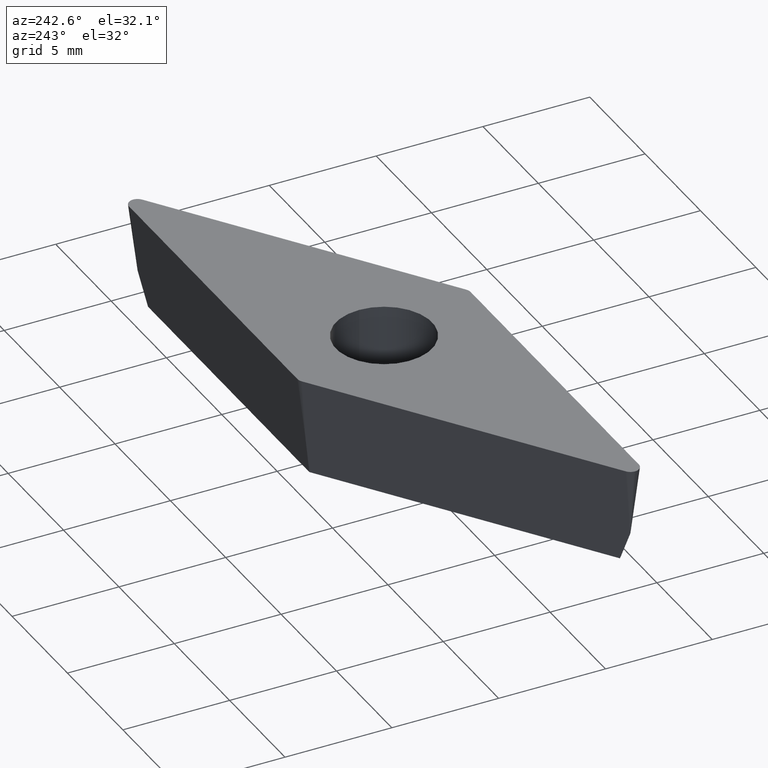
[diagram: clean part render]
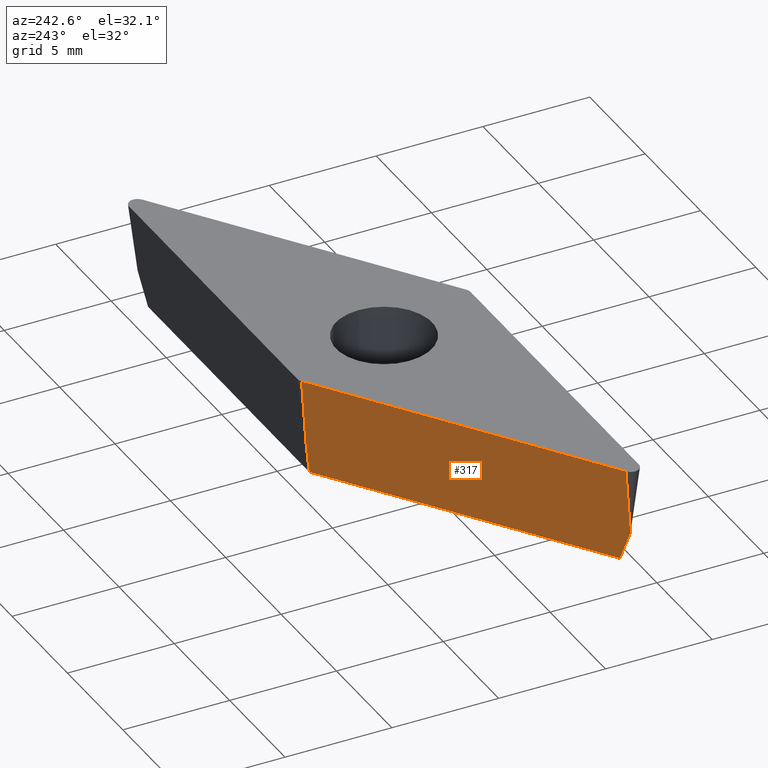
[diagram: same view with one face highlighted and labeled with its STEP entity id]
A machine part, auxiliary view. The second image highlights one B-rep face of the part: STEP entity #317.
In plain terms, the highlighted face is a freeform B-spline surface patch.
Its self-contained STEP definition (entity closure, byte-faithful):
#8 = CARTESIAN_POINT ( 'NONE',  ( -1.604921541024973500, 4.690160817715596200, 0.0000000000000000000 ) ) ;
#35 = CARTESIAN_POINT ( 'NONE',  ( -14.06551289985006100, -4.034839182284403400, 0.0000000000000000000 ) ) ;
#41 = EDGE_CURVE ( 'NONE', #280, #268, #226, .T. ) ;
#46 = EDGE_LOOP ( 'NONE', ( #370, #372, #373, #381, #391, #396 ) ) ;
#58 = VERTEX_POINT ( 'NONE', #394 ) ;
#64 = CARTESIAN_POINT ( 'NONE',  ( -1.317332682910531600, 4.178045490102173100, -4.760000000000000700 ) ) ;
#66 = EDGE_CURVE ( 'NONE', #280, #141, #337, .T. ) ;
#114 = CARTESIAN_POINT ( 'NONE',  ( -1.356104871959882500, 4.301015163367398300, -3.758492380793154300 ) ) ;
#117 = DIRECTION ( 'NONE',  ( -0.06990138369076598400, 0.09982952178648429900, 0.9925461516413219800 ) ) ;
#138 = CARTESIAN_POINT ( 'NONE',  ( -5.356176791971639000, 1.207318956491275200, -5.711999999999998900 ) ) ;
#141 = VERTEX_POINT ( 'NONE', #159 ) ;
#143 = CARTESIAN_POINT ( 'NONE',  ( -13.25106736044506700, -4.178045490102174000, -4.760000000000000700 ) ) ;
#148 = VECTOR ( 'NONE', #117, 1000.000000000000000 ) ;
#149 = CARTESIAN_POINT ( 'NONE',  ( -5.758451993967421200, 1.781827484383353500, 0.0000000000000000000 ) ) ;
#157 = CARTESIAN_POINT ( 'NONE',  ( -15.10472024625494200, -4.762500000000002000, 0.0000000000000000000 ) ) ;
#159 = CARTESIAN_POINT ( 'NONE',  ( -1.375490966484563800, 4.362500000000008700, -3.257738571189731800 ) ) ;
#171 = LINE ( 'NONE', #345, #148 ) ;
#178 = CARTESIAN_POINT ( 'NONE',  ( -13.25106736044506700, -4.178045490102174000, -4.760000000000000700 ) ) ;
#187 = B_SPLINE_SURFACE_WITH_KNOTS ( 'NONE', 1, 3, ( 
 ( #8, #149, #351, #290 ),
 ( #292, #138, #204, #205 ) ),
 .UNSPECIFIED., .F., .F., .F.,
 ( 2, 2 ),
 ( 4, 4 ),
 ( 0.0000000000000000000, 1.000000000000000000 ),
 ( -0.01648021121273949100, -0.001268637920945297400 ),
 .UNSPECIFIED. ) ;
#197 = EDGE_CURVE ( 'NONE', #349, #141, #217, .T. ) ;
#199 = FACE_OUTER_BOUND ( 'NONE', #46, .T. ) ;
#203 = VECTOR ( 'NONE', #207, 1000.000000000000100 ) ;
#204 = CARTESIAN_POINT ( 'NONE',  ( -9.509707244912023700, -1.701014376843929600, -5.711999999999998900 ) ) ;
#205 = CARTESIAN_POINT ( 'NONE',  ( -13.66323769785427300, -4.609347710176476400, -5.711999999999998900 ) ) ;
#207 = DIRECTION ( 'NONE',  ( -0.8191520442889946900, -0.5735764363510417200, -0.0000000000000000000 ) ) ;
#217 = LINE ( 'NONE', #286, #223 ) ;
#222 = CARTESIAN_POINT ( 'NONE',  ( -1.317332682910531600, 4.178045490102173100, -4.760000000000000700 ) ) ;
#223 = VECTOR ( 'NONE', #448, 1000.000000000000000 ) ;
#225 = CARTESIAN_POINT ( 'NONE',  ( -5.295244242089439400, 1.392681830035107600, -4.759999999999998900 ) ) ;
#226 = B_SPLINE_CURVE_WITH_KNOTS ( 'NONE', 3,
 ( #355, #225, #243, #288 ),
 .UNSPECIFIED., .F., .F.,
 ( 4, 4 ),
 ( 1.226634733346699300E-018, 0.01456840004335557700 ),
 .UNSPECIFIED. ) ;
#243 = CARTESIAN_POINT ( 'NONE',  ( -9.273155801266469200, -1.392681830034654200, -4.759999999999998900 ) ) ;
#258 = CARTESIAN_POINT ( 'NONE',  ( -1.604921541024973500, 4.690160817715596200, 0.0000000000000000000 ) ) ;
#268 = VERTEX_POINT ( 'NONE', #143 ) ;
#275 = LINE ( 'NONE', #157, #203 ) ;
#280 = VERTEX_POINT ( 'NONE', #222 ) ;
#286 = CARTESIAN_POINT ( 'NONE',  ( -1.604921541024973500, 4.690160817715596200, 0.0000000000000000000 ) ) ;
#288 = CARTESIAN_POINT ( 'NONE',  ( -13.25106736044506700, -4.178045490102174000, -4.760000000000000700 ) ) ;
#290 = CARTESIAN_POINT ( 'NONE',  ( -14.06551289985006100, -4.034839182284403400, 0.0000000000000000000 ) ) ;
#292 = CARTESIAN_POINT ( 'NONE',  ( -1.202646339029185100, 4.115652289823523300, -5.711999999999998900 ) ) ;
#296 = EDGE_CURVE ( 'NONE', #349, #417, #275, .T. ) ;
#297 = CARTESIAN_POINT ( 'NONE',  ( -1.375490966484563800, 4.362500000000008700, -3.257738571189731800 ) ) ;
#305 = B_SPLINE_CURVE_WITH_KNOTS ( 'NONE', 3,
 ( #178, #460, #455, #447 ),
 .UNSPECIFIED., .F., .F.,
 ( 4, 4 ),
 ( 0.0000000000000000000, 0.001622669213311180100 ),
 .UNSPECIFIED. ) ;
#317 = ADVANCED_FACE ( 'NONE', ( #199 ), #187, .T. ) ;
#318 = CARTESIAN_POINT ( 'NONE',  ( -1.336718777435206700, 4.239530326734785200, -4.259246190396577700 ) ) ;
#337 = B_SPLINE_CURVE_WITH_KNOTS ( 'NONE', 3,
 ( #64, #318, #114, #297 ),
 .UNSPECIFIED., .F., .F.,
 ( 4, 4 ),
 ( 0.0000000000000000000, 0.001514660111266220100 ),
 .UNSPECIFIED. ) ;
#345 = CARTESIAN_POINT ( 'NONE',  ( -14.06551289985006100, -4.034839182284403400, 0.0000000000000000000 ) ) ;
#349 = VERTEX_POINT ( 'NONE', #258 ) ;
#351 = CARTESIAN_POINT ( 'NONE',  ( -9.911982446907822800, -1.126505848951864900, 0.0000000000000000000 ) ) ;
#355 = CARTESIAN_POINT ( 'NONE',  ( -1.317332682910531600, 4.178045490102173100, -4.760000000000000700 ) ) ;
#370 = ORIENTED_EDGE ( 'NONE', *, *, #296, .F. ) ;
#372 = ORIENTED_EDGE ( 'NONE', *, *, #197, .T. ) ;
#373 = ORIENTED_EDGE ( 'NONE', *, *, #66, .F. ) ;
#375 = EDGE_CURVE ( 'NONE', #268, #58, #305, .T. ) ;
#381 = ORIENTED_EDGE ( 'NONE', *, *, #41, .T. ) ;
#391 = ORIENTED_EDGE ( 'NONE', *, *, #375, .T. ) ;
#393 = EDGE_CURVE ( 'NONE', #58, #417, #171, .T. ) ;
#394 = CARTESIAN_POINT ( 'NONE',  ( -13.83608232530964500, -4.362500000000001600, -3.257738571189830800 ) ) ;
#396 = ORIENTED_EDGE ( 'NONE', *, *, #393, .T. ) ;
#417 = VERTEX_POINT ( 'NONE', #35 ) ;
#447 = CARTESIAN_POINT ( 'NONE',  ( -13.83608232530964500, -4.362500000000001600, -3.257738571189830800 ) ) ;
#448 = DIRECTION ( 'NONE',  ( 0.06990138369076598400, -0.09982952178648429900, -0.9925461516413219800 ) ) ;
#455 = CARTESIAN_POINT ( 'NONE',  ( -13.64107733702144300, -4.301015163367393000, -3.758492380793217800 ) ) ;
#460 = CARTESIAN_POINT ( 'NONE',  ( -13.44607234873325300, -4.239530326734783500, -4.259246190396607900 ) ) ;